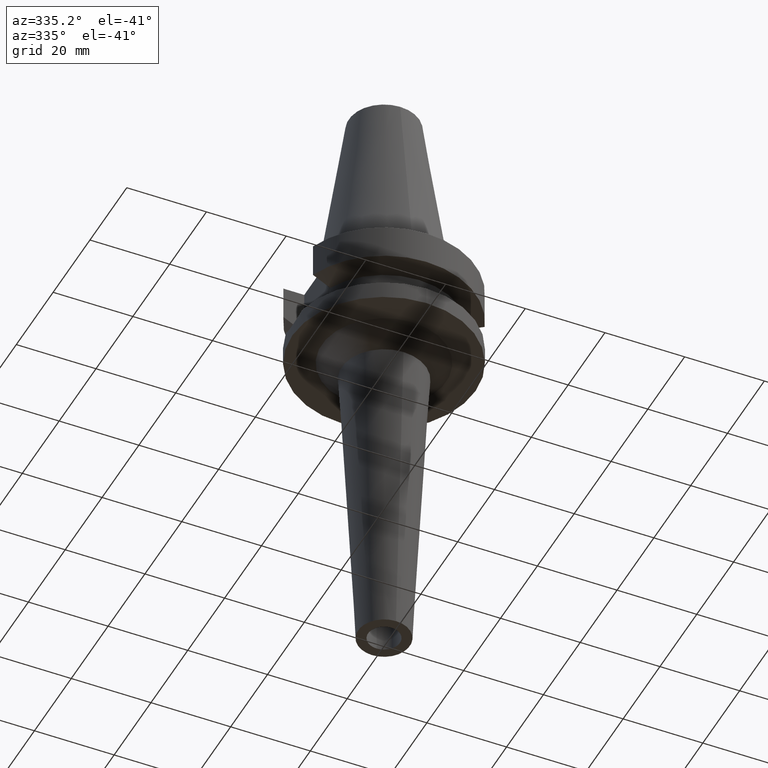
[diagram: clean part render]
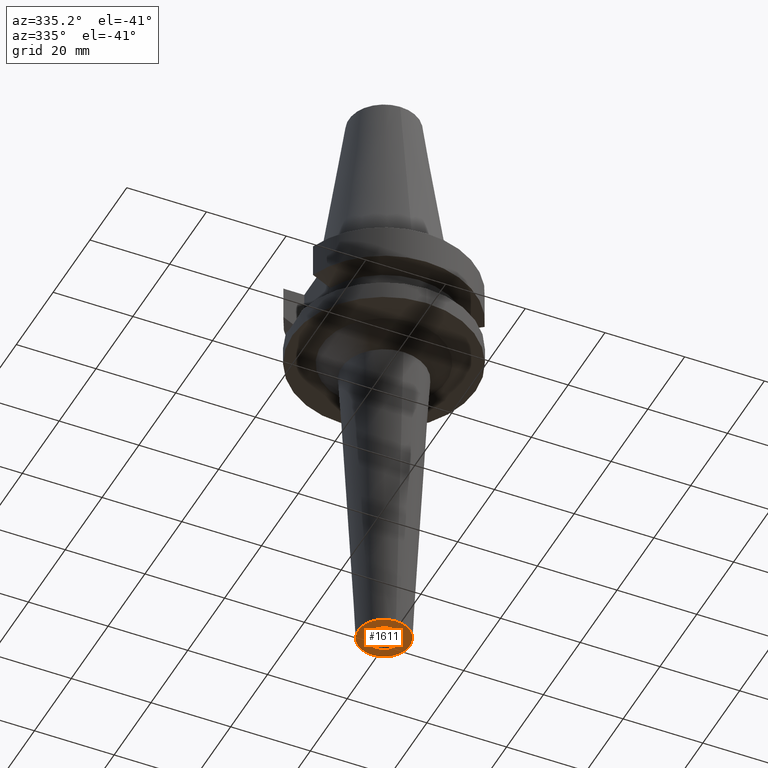
[diagram: same view with one face highlighted and labeled with its STEP entity id]
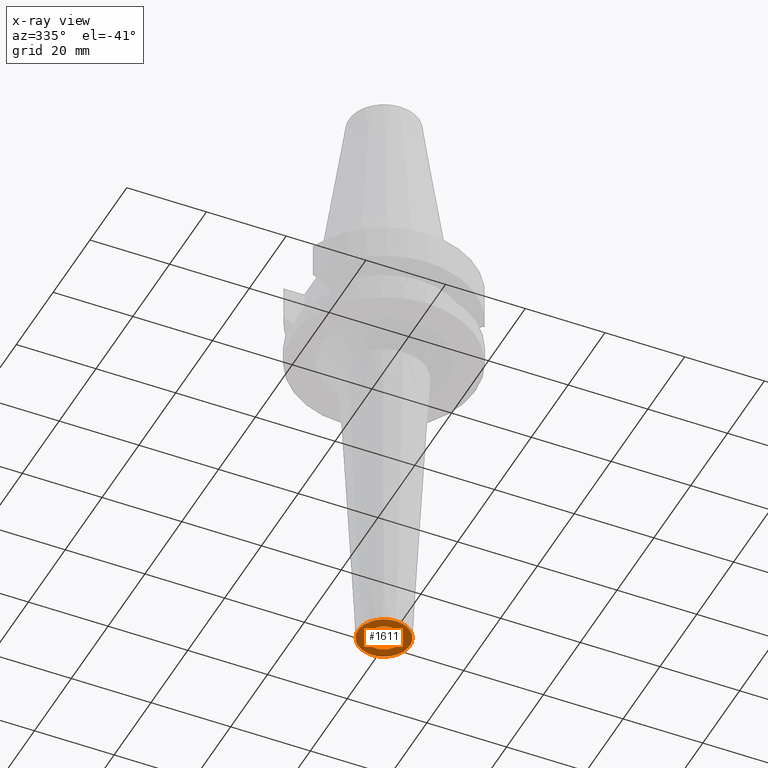
[diagram: x-ray of the same camera — body ghosted, the highlighted face saturated]
A machine part, auxiliary view. The second image highlights one B-rep face of the part: STEP entity #1611.
The next image is the same camera in x-ray: the body ghosted, the highlighted face saturated — about 0% of this face is hidden behind the body in this view.
In plain terms, the highlighted planar face has unit normal (0, 0, -1).
Its self-contained STEP definition (entity closure, byte-faithful):
#691=CARTESIAN_POINT('',(0.E0,0.E0,-1.05E2));
#692=DIRECTION('',(0.E0,0.E0,1.E0));
#693=DIRECTION('',(0.E0,-1.E0,0.E0));
#694=AXIS2_PLACEMENT_3D('',#691,#692,#693);
#699=CARTESIAN_POINT('',(0.E0,0.E0,-1.05E2));
#700=DIRECTION('',(0.E0,0.E0,1.E0));
#701=DIRECTION('',(0.E0,1.E0,0.E0));
#702=AXIS2_PLACEMENT_3D('',#699,#700,#701);
#707=CARTESIAN_POINT('',(0.E0,1.911306259429E-14,-1.05E2));
#708=DIRECTION('',(0.E0,0.E0,-1.E0));
#709=DIRECTION('',(0.E0,-1.E0,0.E0));
#710=AXIS2_PLACEMENT_3D('',#707,#708,#709);
#715=CARTESIAN_POINT('',(0.E0,1.911306259429E-14,-1.05E2));
#716=DIRECTION('',(0.E0,0.E0,-1.E0));
#717=DIRECTION('',(0.E0,1.E0,0.E0));
#718=AXIS2_PLACEMENT_3D('',#715,#716,#717);
#1015=CARTESIAN_POINT('',(0.E0,4.E0,-1.05E2));
#1016=VERTEX_POINT('',#1015);
#1017=CARTESIAN_POINT('',(0.E0,-4.E0,-1.05E2));
#1018=VERTEX_POINT('',#1017);
#1019=CARTESIAN_POINT('',(0.E0,-6.5E0,-1.05E2));
#1020=CARTESIAN_POINT('',(0.E0,6.5E0,-1.05E2));
#1021=VERTEX_POINT('',#1019);
#1022=VERTEX_POINT('',#1020);
#1596=CARTESIAN_POINT('',(0.E0,0.E0,-1.05E2));
#1597=DIRECTION('',(0.E0,0.E0,-1.E0));
#1598=DIRECTION('',(0.E0,-1.E0,0.E0));
#1599=AXIS2_PLACEMENT_3D('',#1596,#1597,#1598);
#1600=PLANE('',#1599);
#1601=ORIENTED_EDGE('',*,*,#1575,.T.);
#1602=ORIENTED_EDGE('',*,*,#1591,.T.);
#1603=EDGE_LOOP('',(#1601,#1602));
#1604=FACE_OUTER_BOUND('',#1603,.F.);
#1606=ORIENTED_EDGE('',*,*,#1605,.T.);
#1608=ORIENTED_EDGE('',*,*,#1607,.T.);
#1609=EDGE_LOOP('',(#1606,#1608));
#1610=FACE_BOUND('',#1609,.F.);
#695=CIRCLE('',#694,6.5E0);
#703=CIRCLE('',#702,6.5E0);
#711=CIRCLE('',#710,4.E0);
#719=CIRCLE('',#718,4.E0);
#1575=EDGE_CURVE('',#1021,#1022,#695,.T.);
#1591=EDGE_CURVE('',#1022,#1021,#703,.T.);
#1605=EDGE_CURVE('',#1018,#1016,#711,.T.);
#1607=EDGE_CURVE('',#1016,#1018,#719,.T.);
#1611=ADVANCED_FACE('',(#1604,#1610),#1600,.T.);